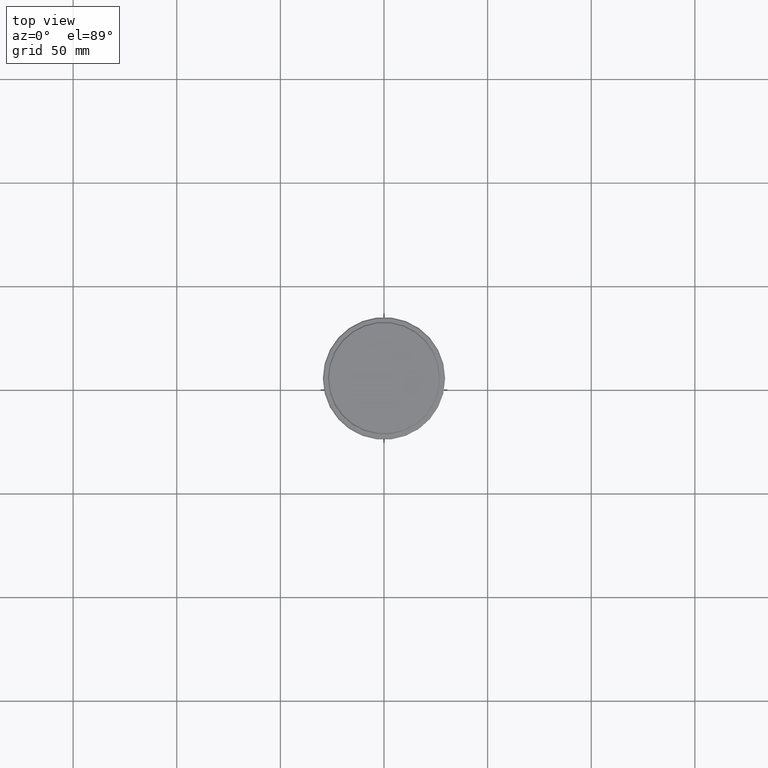
[diagram: clean part render]
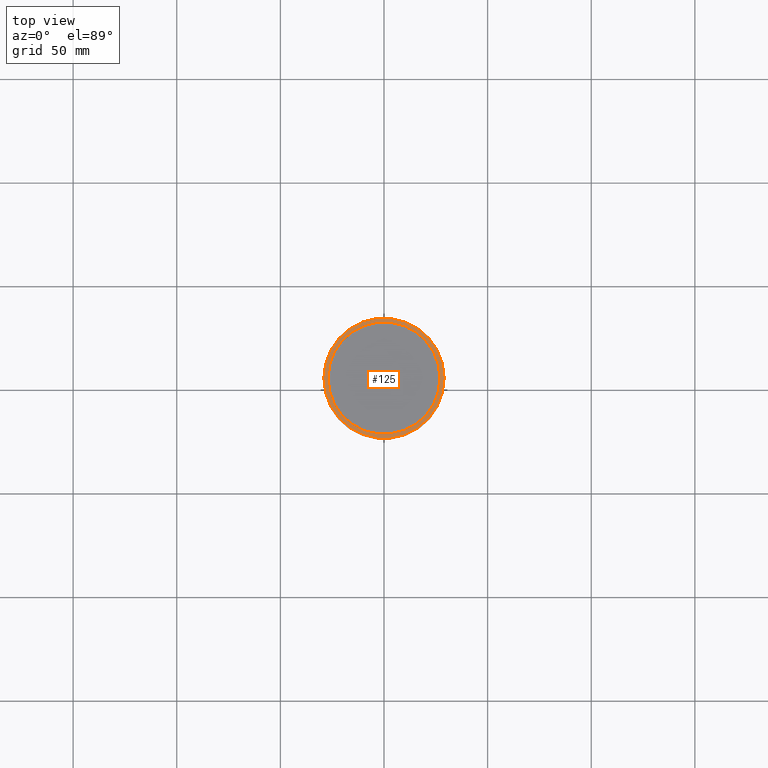
[diagram: same view with one face highlighted and labeled with its STEP entity id]
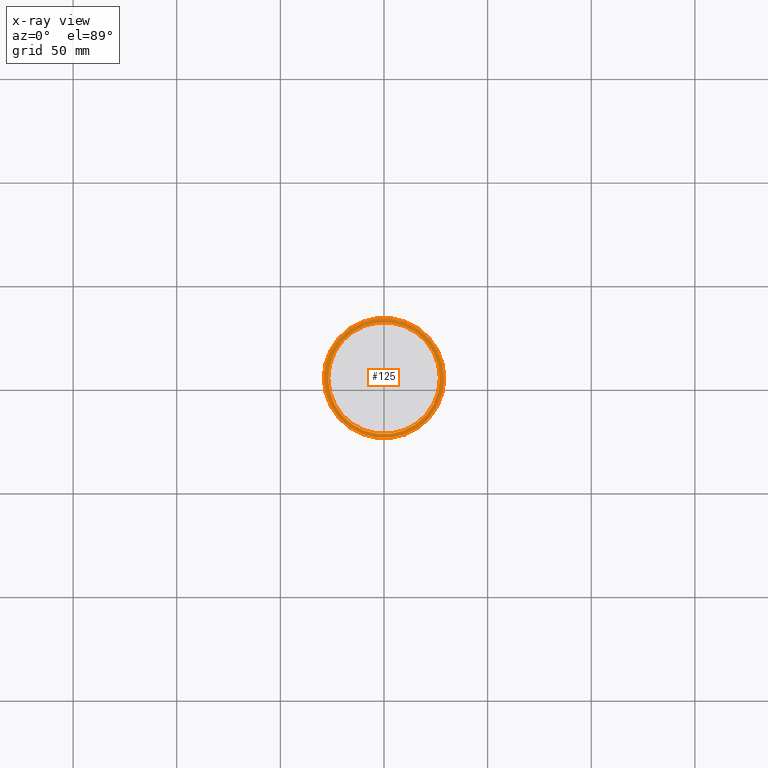
[diagram: x-ray of the same camera — body ghosted, the highlighted face saturated]
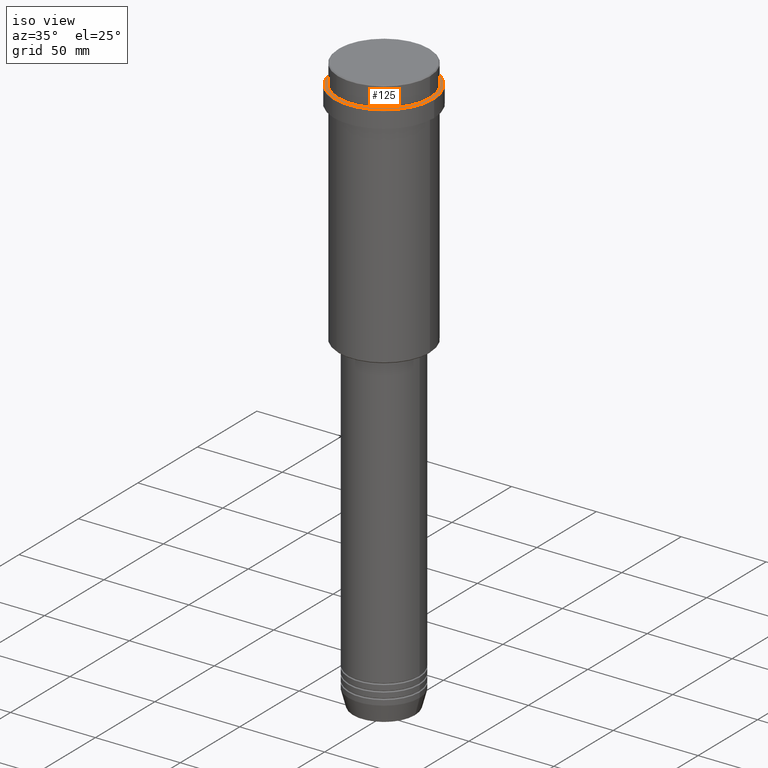
[diagram: same view with one face highlighted and labeled with its STEP entity id]
A machine part, top view. The second image highlights one B-rep face of the part: STEP entity #125.
The next image is the same camera in x-ray: the body ghosted, the highlighted face saturated — about 0% of this face is hidden behind the body in this view.
A second angle (iso view) of the same face is appended — the face is thin or edge-on in the first view.
In plain terms, the highlighted planar face has unit normal (0, -0, 1).
Its self-contained STEP definition (entity closure, byte-faithful):
#20 = CARTESIAN_POINT ( 'NONE',  ( 0.000000000000000000, 26.49999999999999645, -12.00000000000000355 ) ) ;
#23 = VERTEX_POINT ( 'NONE', #963 ) ;
#27 = CARTESIAN_POINT ( 'NONE',  ( 29.00000000000002487, 3.582091887506009394E-15, -12.00000000000000355 ) ) ;
#57 = DIRECTION ( 'NONE',  ( -0.000000000000000000, -0.000000000000000000, 1.000000000000000000 ) ) ;
#120 = AXIS2_PLACEMENT_3D ( 'NONE', #20, #281, #1213 ) ;
#125 = ADVANCED_FACE ( 'NONE', ( #333, #550 ), #998, .T. ) ;
#126 = CARTESIAN_POINT ( 'NONE',  ( 0.000000000000000000, 0.000000000000000000, -12.00000000000000355 ) ) ;
#237 = CIRCLE ( 'NONE', #642, 29.00000000000002487 ) ;
#243 = DIRECTION ( 'NONE',  ( 0.000000000000000000, 0.000000000000000000, -1.000000000000000000 ) ) ;
#265 = CARTESIAN_POINT ( 'NONE',  ( 0.000000000000000000, 0.000000000000000000, -12.00000000000000355 ) ) ;
#281 = DIRECTION ( 'NONE',  ( 0.000000000000000000, -0.000000000000000000, 1.000000000000000000 ) ) ;
#287 = CARTESIAN_POINT ( 'NONE',  ( 0.000000000000000000, 0.000000000000000000, -12.00000000000000355 ) ) ;
#333 = FACE_OUTER_BOUND ( 'NONE', #978, .T. ) ;
#346 = EDGE_CURVE ( 'NONE', #23, #624, #504, .T. ) ;
#426 = ORIENTED_EDGE ( 'NONE', *, *, #819, .T. ) ;
#440 = ORIENTED_EDGE ( 'NONE', *, *, #346, .T. ) ;
#481 = DIRECTION ( 'NONE',  ( 1.000000000000000000, 0.000000000000000000, 0.000000000000000000 ) ) ;
#504 = CIRCLE ( 'NONE', #759, 29.00000000000002487 ) ;
#550 = FACE_BOUND ( 'NONE', #854, .T. ) ;
#624 = VERTEX_POINT ( 'NONE', #27 ) ;
#642 = AXIS2_PLACEMENT_3D ( 'NONE', #1033, #814, #1251 ) ;
#688 = CIRCLE ( 'NONE', #781, 26.99999999999999645 ) ;
#690 = DIRECTION ( 'NONE',  ( 0.000000000000000000, 0.000000000000000000, -1.000000000000000000 ) ) ;
#717 = DIRECTION ( 'NONE',  ( 1.000000000000000000, 0.000000000000000000, 0.000000000000000000 ) ) ;
#748 = ORIENTED_EDGE ( 'NONE', *, *, #1148, .T. ) ;
#759 = AXIS2_PLACEMENT_3D ( 'NONE', #287, #57, #481 ) ;
#781 = AXIS2_PLACEMENT_3D ( 'NONE', #126, #243, #884 ) ;
#814 = DIRECTION ( 'NONE',  ( -0.000000000000000000, -0.000000000000000000, 1.000000000000000000 ) ) ;
#819 = EDGE_CURVE ( 'NONE', #624, #23, #237, .T. ) ;
#854 = EDGE_LOOP ( 'NONE', ( #1141, #748 ) ) ;
#884 = DIRECTION ( 'NONE',  ( 1.000000000000000000, 0.000000000000000000, 0.000000000000000000 ) ) ;
#963 = CARTESIAN_POINT ( 'NONE',  ( -29.00000000000002487, 0.000000000000000000, -12.00000000000000355 ) ) ;
#978 = EDGE_LOOP ( 'NONE', ( #440, #426 ) ) ;
#998 = PLANE ( 'NONE',  #120 ) ;
#1010 = CARTESIAN_POINT ( 'NONE',  ( -26.99999999999999645, 3.306546357697853339E-15, -12.00000000000000355 ) ) ;
#1033 = CARTESIAN_POINT ( 'NONE',  ( 0.000000000000000000, 0.000000000000000000, -12.00000000000000355 ) ) ;
#1109 = VERTEX_POINT ( 'NONE', #1010 ) ;
#1141 = ORIENTED_EDGE ( 'NONE', *, *, #1189, .T. ) ;
#1148 = EDGE_CURVE ( 'NONE', #1109, #1282, #688, .T. ) ;
#1175 = AXIS2_PLACEMENT_3D ( 'NONE', #265, #690, #717 ) ;
#1189 = EDGE_CURVE ( 'NONE', #1282, #1109, #1265, .T. ) ;
#1213 = DIRECTION ( 'NONE',  ( 1.000000000000000000, 0.000000000000000000, 0.000000000000000000 ) ) ;
#1251 = DIRECTION ( 'NONE',  ( 1.000000000000000000, 0.000000000000000000, 0.000000000000000000 ) ) ;
#1265 = CIRCLE ( 'NONE', #1175, 26.99999999999999645 ) ;
#1266 = CARTESIAN_POINT ( 'NONE',  ( 26.99999999999999645, 0.000000000000000000, -12.00000000000000355 ) ) ;
#1282 = VERTEX_POINT ( 'NONE', #1266 ) ;